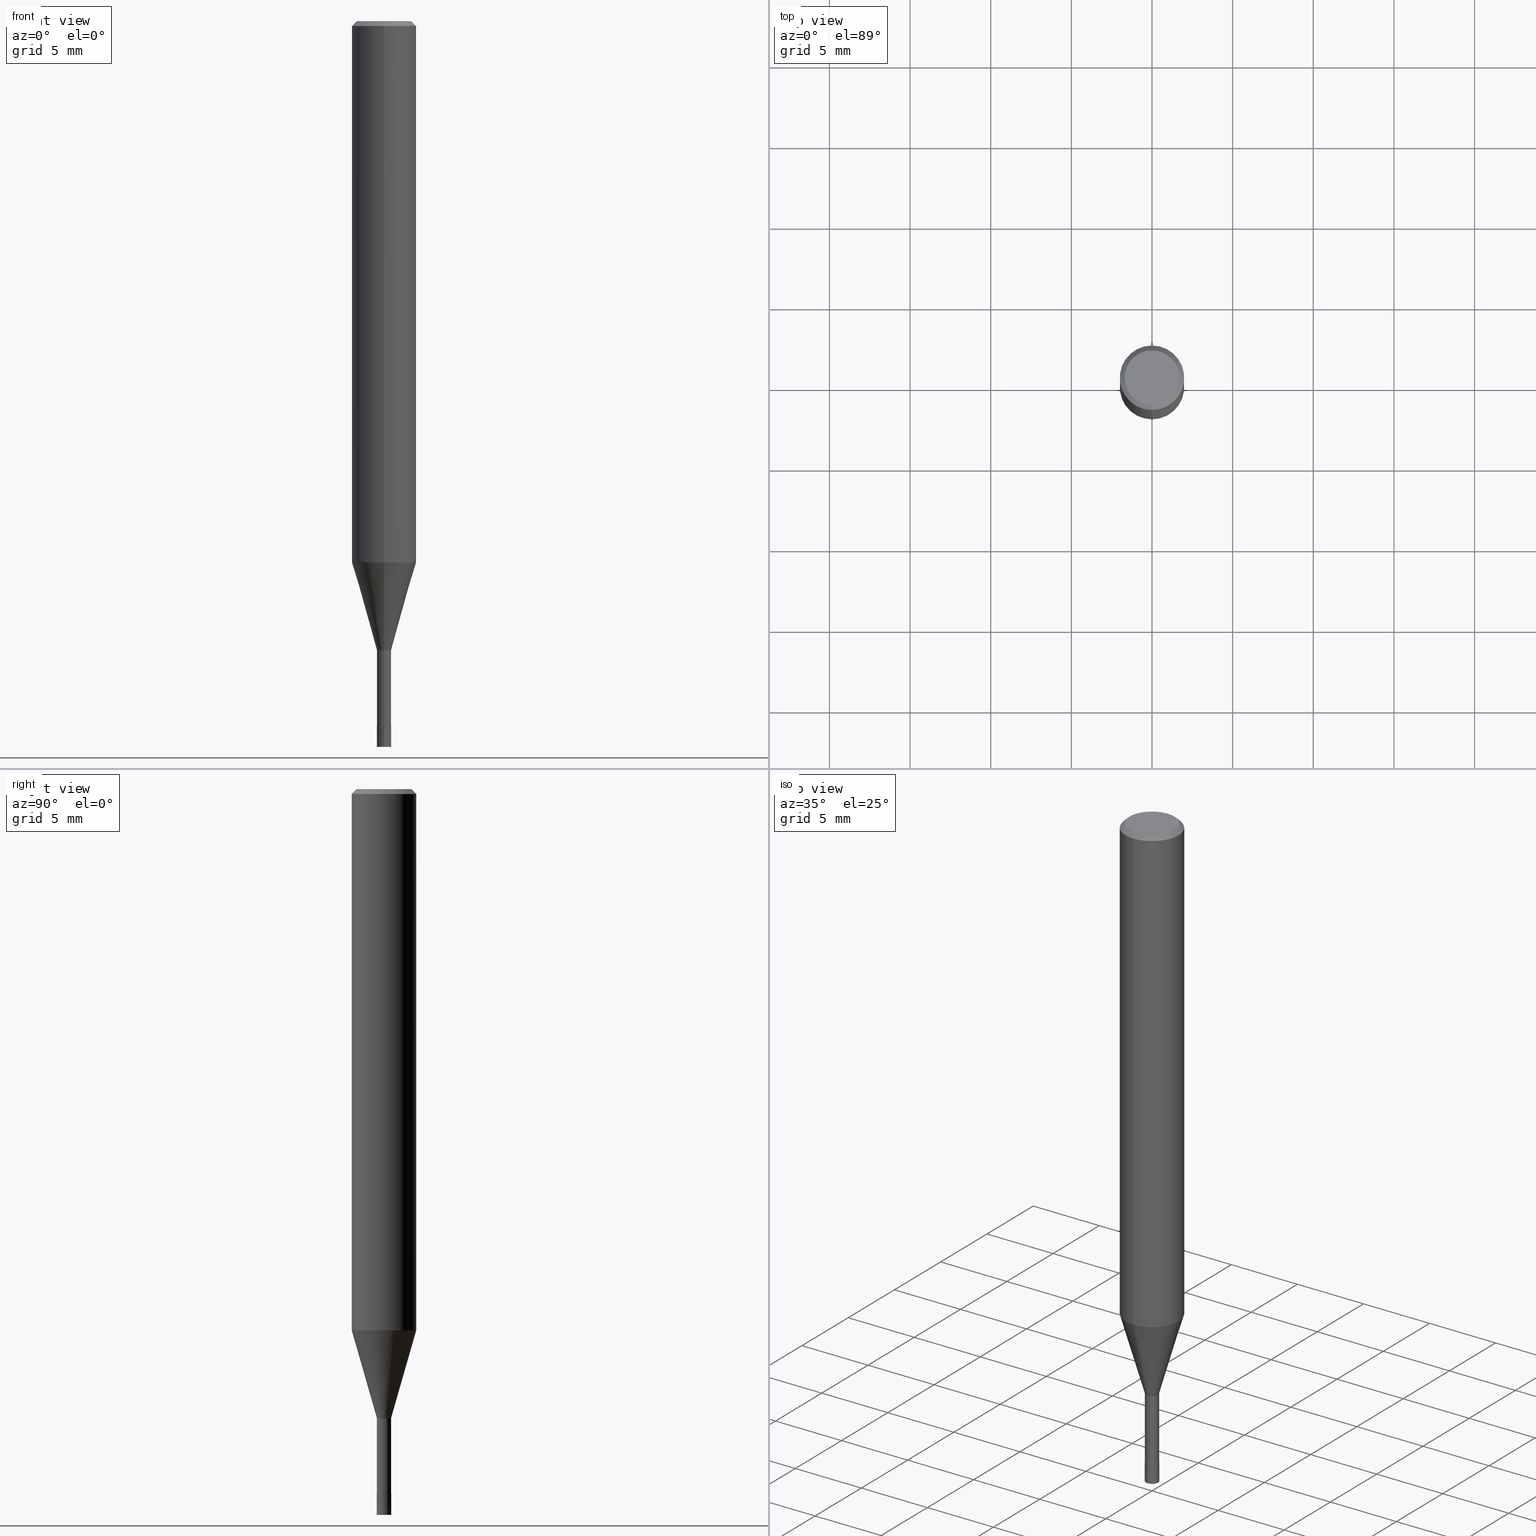
[diagram: canonical four-view strip — front | top / right | iso, engineering-drawing reading convention]
A machine part, canonical four-view strip (front | top / right | iso — engineering-drawing reading convention). The complete STEP part file that produces these views, byte-faithful:
ISO-10303-21;
HEADER;
FILE_DESCRIPTION(('no description'),'unknown implementation level');
FILE_NAME('HLS2009-060-Huellk.stp','  ',('CIMSOURCE GmbH'),('CADClick - KiM GmbH - www.kimweb.de'),'unknown preprocess','ACIS','unknown authorization');
FILE_SCHEMA(('automotive_design'));
ENDSEC;
DATA;
#1=MECHANICAL_DESIGN_GEOMETRIC_PRESENTATION_REPRESENTATION(' ',(#14,#15,#16,#17,#18,#19,#20,#21,#22,#23,#24,#25,#26,#27,#28,#29,#30,#31,#32,#33,#34,#35,#36,#37,#38,#39,#40,#41,#42,#43,#44,#45,#46,#47,#48,#49,#50,#51,#52,#53,#54,#55,#56,#57,#58,#59,#60,#61,#62,#63,#64,#65,#66,#67,#68,#69,#70,#71,#72),#10);
#2=PRODUCT_DEFINITION_CONTEXT('',#73,'design');
#3=APPLICATION_PROTOCOL_DEFINITION('INTERNATIONAL STANDARD','automotive_design',1994,#73);
#4=PRODUCT_CATEGORY_RELATIONSHIP('NONE','NONE',#74,#75);
#5=SHAPE_DEFINITION_REPRESENTATION(#76,#77);
#6=PRODUCT_DEFINITION_CONTEXT('',#78,'design');
#7=APPLICATION_PROTOCOL_DEFINITION('INTERNATIONAL STANDARD','automotive_design',1994,#78);
#8=PRODUCT_CATEGORY_RELATIONSHIP('NONE','NONE',#79,#80);
#9=SHAPE_DEFINITION_REPRESENTATION(#81,#82);
#10= (GEOMETRIC_REPRESENTATION_CONTEXT(3)GLOBAL_UNCERTAINTY_ASSIGNED_CONTEXT((#85))GLOBAL_UNIT_ASSIGNED_CONTEXT((#87,#88,#89))REPRESENTATION_CONTEXT('NONE','WORKSPACE'));
#14=STYLED_ITEM('',(#91),#92);
#15=STYLED_ITEM('',(#93),#94);
#16=STYLED_ITEM('',(#95),#96);
#17=STYLED_ITEM('',(#97),#98);
#18=STYLED_ITEM('',(#99),#100);
#19=STYLED_ITEM('',(#101),#102);
#20=STYLED_ITEM('',(#103),#104);
#21=STYLED_ITEM('',(#105),#106);
#22=STYLED_ITEM('',(#107),#108);
#23=STYLED_ITEM('',(#109),#110);
#24=STYLED_ITEM('',(#111),#112);
#25=STYLED_ITEM('',(#113),#114);
#26=STYLED_ITEM('',(#115),#116);
#27=STYLED_ITEM('',(#117),#118);
#28=STYLED_ITEM('',(#119),#120);
#29=STYLED_ITEM('',(#121),#122);
#30=STYLED_ITEM('',(#123),#124);
#31=STYLED_ITEM('',(#125),#126);
#32=STYLED_ITEM('',(#127),#128);
#33=STYLED_ITEM('',(#129),#130);
#34=STYLED_ITEM('',(#131),#132);
#35=STYLED_ITEM('',(#133),#134);
#36=STYLED_ITEM('',(#135),#136);
#37=STYLED_ITEM('',(#137),#138);
#38=STYLED_ITEM('',(#139),#140);
#39=STYLED_ITEM('',(#141),#142);
#40=STYLED_ITEM('',(#143),#144);
#41=STYLED_ITEM('',(#145),#146);
#42=STYLED_ITEM('',(#147),#148);
#43=STYLED_ITEM('',(#149),#150);
#44=STYLED_ITEM('',(#151),#152);
#45=STYLED_ITEM('',(#153),#154);
#46=STYLED_ITEM('',(#155),#156);
#47=STYLED_ITEM('',(#157),#158);
#48=STYLED_ITEM('',(#159),#160);
#49=STYLED_ITEM('',(#161),#162);
#50=STYLED_ITEM('',(#163),#164);
#51=STYLED_ITEM('',(#165),#166);
#52=STYLED_ITEM('',(#167),#168);
#53=STYLED_ITEM('',(#169),#170);
#54=STYLED_ITEM('',(#171),#172);
#55=STYLED_ITEM('',(#173),#174);
#56=STYLED_ITEM('',(#175),#176);
#57=STYLED_ITEM('',(#177),#178);
#58=STYLED_ITEM('',(#179),#180);
#59=STYLED_ITEM('',(#181),#182);
#60=STYLED_ITEM('',(#183),#184);
#61=STYLED_ITEM('',(#185),#186);
#62=STYLED_ITEM('',(#187),#188);
#63=STYLED_ITEM('',(#189),#190);
#64=STYLED_ITEM('',(#191),#192);
#65=STYLED_ITEM('',(#193),#194);
#66=STYLED_ITEM('',(#195),#196);
#67=STYLED_ITEM('',(#197),#198);
#68=STYLED_ITEM('',(#199),#200);
#69=STYLED_ITEM('',(#201),#202);
#70=STYLED_ITEM('',(#203),#204);
#71=STYLED_ITEM('',(#205),#206);
#72=STYLED_ITEM('',(#207),#208);
#73=APPLICATION_CONTEXT(' ');
#74=PRODUCT_CATEGORY('part','NONE');
#75=PRODUCT_RELATED_PRODUCT_CATEGORY('detail',' ',(#209));
#76=PRODUCT_DEFINITION_SHAPE('NONE','NONE',#210);
#77=ADVANCED_BREP_SHAPE_REPRESENTATION('1',(#162,#211),#10);
#78=APPLICATION_CONTEXT(' ');
#79=PRODUCT_CATEGORY('part','NONE');
#80=PRODUCT_RELATED_PRODUCT_CATEGORY('detail',' ',(#212));
#81=PRODUCT_DEFINITION_SHAPE('NONE','NONE',#213);
#82=ADVANCED_BREP_SHAPE_REPRESENTATION('2',(#200,#214),#10);
#85=UNCERTAINTY_MEASURE_WITH_UNIT(LENGTH_MEASURE(1.0E-006),#87,'','');
#87= (CONVERSION_BASED_UNIT('MILLIMETRE',#217)LENGTH_UNIT()NAMED_UNIT(#220));
#88= (NAMED_UNIT(#222)PLANE_ANGLE_UNIT()SI_UNIT($,.RADIAN.));
#89= (NAMED_UNIT(#222)SOLID_ANGLE_UNIT()SI_UNIT($,.STERADIAN.));
#91=PRESENTATION_STYLE_ASSIGNMENT((#228));
#92=EDGE_CURVE('',#182,#184,#229,.T.);
#93=PRESENTATION_STYLE_ASSIGNMENT((#230));
#94=EDGE_CURVE('',#184,#206,#231,.T.);
#95=PRESENTATION_STYLE_ASSIGNMENT((#232));
#96=EDGE_CURVE('',#204,#164,#233,.T.);
#97=PRESENTATION_STYLE_ASSIGNMENT((#234));
#98=EDGE_CURVE('',#166,#194,#235,.T.);
#99=PRESENTATION_STYLE_ASSIGNMENT((#236));
#100=ADVANCED_FACE('',(#237),#238,.T.);
#101=PRESENTATION_STYLE_ASSIGNMENT((#239));
#102=ADVANCED_FACE('',(#240),#241,.T.);
#103=PRESENTATION_STYLE_ASSIGNMENT((#242));
#104=EDGE_CURVE('',#136,#206,#243,.T.);
#105=PRESENTATION_STYLE_ASSIGNMENT((#244));
#106=ADVANCED_FACE('',(#245),#246,.T.);
#107=PRESENTATION_STYLE_ASSIGNMENT((#247));
#108=EDGE_CURVE('',#194,#166,#248,.T.);
#109=PRESENTATION_STYLE_ASSIGNMENT((#249));
#110=ADVANCED_FACE('',(#250),#251,.T.);
#111=PRESENTATION_STYLE_ASSIGNMENT((#252));
#112=ADVANCED_FACE('',(#253),#254,.T.);
#113=PRESENTATION_STYLE_ASSIGNMENT((#255));
#114=ADVANCED_FACE('',(#256),#257,.T.);
#115=PRESENTATION_STYLE_ASSIGNMENT((#258));
#116=ADVANCED_FACE('',(#259),#260,.T.);
#117=PRESENTATION_STYLE_ASSIGNMENT((#261));
#118=ADVANCED_FACE('',(#262),#263,.T.);
#119=PRESENTATION_STYLE_ASSIGNMENT((#264));
#120=EDGE_CURVE('',#138,#146,#265,.T.);
#121=PRESENTATION_STYLE_ASSIGNMENT((#266));
#122=EDGE_CURVE('',#126,#154,#267,.T.);
#123=PRESENTATION_STYLE_ASSIGNMENT((#268));
#124=EDGE_CURVE('',#204,#126,#269,.T.);
#125=PRESENTATION_STYLE_ASSIGNMENT((#270));
#126=VERTEX_POINT('',#271);
#127=PRESENTATION_STYLE_ASSIGNMENT((#272));
#128=ADVANCED_FACE('',(#273),#274,.T.);
#129=PRESENTATION_STYLE_ASSIGNMENT((#275));
#130=EDGE_CURVE('',#154,#164,#276,.T.);
#131=PRESENTATION_STYLE_ASSIGNMENT((#277));
#132=ADVANCED_FACE('',(#278),#279,.T.);
#133=PRESENTATION_STYLE_ASSIGNMENT((#280));
#134=EDGE_CURVE('',#182,#194,#281,.T.);
#135=PRESENTATION_STYLE_ASSIGNMENT((#282));
#136=VERTEX_POINT('',#283);
#137=PRESENTATION_STYLE_ASSIGNMENT((#284));
#138=VERTEX_POINT('',#285);
#139=PRESENTATION_STYLE_ASSIGNMENT((#286));
#140=EDGE_CURVE('',#180,#192,#287,.T.);
#141=PRESENTATION_STYLE_ASSIGNMENT((#288));
#142=EDGE_CURVE('',#184,#182,#289,.T.);
#143=PRESENTATION_STYLE_ASSIGNMENT((#290));
#144=EDGE_CURVE('',#164,#204,#291,.T.);
#145=PRESENTATION_STYLE_ASSIGNMENT((#292));
#146=VERTEX_POINT('',#293);
#147=PRESENTATION_STYLE_ASSIGNMENT((#294));
#148=EDGE_CURVE('',#138,#180,#295,.T.);
#149=PRESENTATION_STYLE_ASSIGNMENT((#296));
#150=VERTEX_POINT('',#297);
#151=PRESENTATION_STYLE_ASSIGNMENT((#298));
#152=EDGE_CURVE('',#146,#138,#299,.T.);
#153=PRESENTATION_STYLE_ASSIGNMENT((#300));
#154=VERTEX_POINT('',#301);
#155=PRESENTATION_STYLE_ASSIGNMENT((#302));
#156=EDGE_CURVE('',#126,#150,#303,.T.);
#157=PRESENTATION_STYLE_ASSIGNMENT((#304));
#158=ADVANCED_FACE('',(#305),#306,.T.);
#159=PRESENTATION_STYLE_ASSIGNMENT((#307));
#160=EDGE_CURVE('',#154,#126,#308,.T.);
#161=PRESENTATION_STYLE_ASSIGNMENT((#309));
#162=MANIFOLD_SOLID_BREP('1',#310);
#163=PRESENTATION_STYLE_ASSIGNMENT((#311));
#164=VERTEX_POINT('',#312);
#165=PRESENTATION_STYLE_ASSIGNMENT((#313));
#166=VERTEX_POINT('',#314);
#167=PRESENTATION_STYLE_ASSIGNMENT((#315));
#168=ADVANCED_FACE('',(#316,#317),#318,.T.);
#169=PRESENTATION_STYLE_ASSIGNMENT((#319));
#170=ADVANCED_FACE('',(#320),#321,.T.);
#171=PRESENTATION_STYLE_ASSIGNMENT((#322));
#172=EDGE_CURVE('',#186,#150,#323,.T.);
#173=PRESENTATION_STYLE_ASSIGNMENT((#324));
#174=ADVANCED_FACE('',(#325),#326,.T.);
#175=PRESENTATION_STYLE_ASSIGNMENT((#327));
#176=ADVANCED_FACE('',(#328),#329,.T.);
#177=PRESENTATION_STYLE_ASSIGNMENT((#330));
#178=EDGE_CURVE('',#192,#180,#331,.T.);
#179=PRESENTATION_STYLE_ASSIGNMENT((#332));
#180=VERTEX_POINT('',#333);
#181=PRESENTATION_STYLE_ASSIGNMENT((#334));
#182=VERTEX_POINT('',#335);
#183=PRESENTATION_STYLE_ASSIGNMENT((#336));
#184=VERTEX_POINT('',#337);
#185=PRESENTATION_STYLE_ASSIGNMENT((#338));
#186=VERTEX_POINT('',#339);
#187=PRESENTATION_STYLE_ASSIGNMENT((#340));
#188=EDGE_CURVE('',#166,#184,#341,.T.);
#189=PRESENTATION_STYLE_ASSIGNMENT((#342));
#190=EDGE_CURVE('',#186,#154,#343,.T.);
#191=PRESENTATION_STYLE_ASSIGNMENT((#344));
#192=VERTEX_POINT('',#345);
#193=PRESENTATION_STYLE_ASSIGNMENT((#346));
#194=VERTEX_POINT('',#347);
#195=PRESENTATION_STYLE_ASSIGNMENT((#348));
#196=EDGE_CURVE('',#150,#186,#349,.T.);
#197=PRESENTATION_STYLE_ASSIGNMENT((#350));
#198=EDGE_CURVE('',#206,#136,#351,.T.);
#199=PRESENTATION_STYLE_ASSIGNMENT((#352));
#200=MANIFOLD_SOLID_BREP('2',#353);
#201=PRESENTATION_STYLE_ASSIGNMENT((#354));
#202=EDGE_CURVE('',#136,#182,#355,.T.);
#203=PRESENTATION_STYLE_ASSIGNMENT((#356));
#204=VERTEX_POINT('',#357);
#205=PRESENTATION_STYLE_ASSIGNMENT((#358));
#206=VERTEX_POINT('',#359);
#207=PRESENTATION_STYLE_ASSIGNMENT((#360));
#208=EDGE_CURVE('',#192,#146,#361,.T.);
#209=PRODUCT('1','1','PART-1-DESC',(#362));
#210=PRODUCT_DEFINITION('NONE','NONE',#363,#2);
#211=AXIS2_PLACEMENT_3D('',#364,#365,#366);
#212=PRODUCT('2','2','PART-2-DESC',(#367));
#213=PRODUCT_DEFINITION('NONE','NONE',#368,#6);
#214=AXIS2_PLACEMENT_3D('',#369,#370,#371);
#217=LENGTH_MEASURE_WITH_UNIT(LENGTH_MEASURE(1.0),#372);
#220=DIMENSIONAL_EXPONENTS(1.0,0.0,0.0,0.0,0.0,0.0,0.0);
#222=DIMENSIONAL_EXPONENTS(0.0,0.0,0.0,0.0,0.0,0.0,0.0);
#228=CURVE_STYLE('',#373,POSITIVE_LENGTH_MEASURE(1.0E-006),#374);
#229=CIRCLE('',#375,2.0);
#230=CURVE_STYLE('',#376,POSITIVE_LENGTH_MEASURE(1.0E-006),#377);
#231=LINE('',#378,#379);
#232=CURVE_STYLE('',#380,POSITIVE_LENGTH_MEASURE(1.0E-006),#381);
#233=CIRCLE('',#382,1.99995);
#234=CURVE_STYLE('',#383,POSITIVE_LENGTH_MEASURE(1.0E-006),#384);
#235=CIRCLE('',#385,1.7);
#236=SURFACE_STYLE_USAGE(.BOTH.,#386);
#237=FACE_OUTER_BOUND('',#387,.T.);
#238=CYLINDRICAL_SURFACE('',#388,2.0);
#239=SURFACE_STYLE_USAGE(.BOTH.,#389);
#240=FACE_OUTER_BOUND('',#390,.T.);
#241=CYLINDRICAL_SURFACE('',#391,0.43995);
#242=CURVE_STYLE('',#392,POSITIVE_LENGTH_MEASURE(1.0E-006),#393);
#243=CIRCLE('',#394,2.0);
#244=SURFACE_STYLE_USAGE(.BOTH.,#395);
#245=FACE_OUTER_BOUND('',#396,.T.);
#246=CONICAL_SURFACE('',#397,1.85,0.785398163397453);
#247=CURVE_STYLE('',#398,POSITIVE_LENGTH_MEASURE(1.0E-006),#399);
#248=CIRCLE('',#400,1.7);
#249=SURFACE_STYLE_USAGE(.BOTH.,#401);
#250=FACE_OUTER_BOUND('',#402,.T.);
#251=CONICAL_SURFACE('',#403,0.44995,7.69230767713464E-005);
#252=SURFACE_STYLE_USAGE(.BOTH.,#404);
#253=FACE_OUTER_BOUND('',#405,.T.);
#254=PLANE('',#406);
#255=SURFACE_STYLE_USAGE(.BOTH.,#407);
#256=FACE_OUTER_BOUND('',#408,.T.);
#257=CONICAL_SURFACE('',#409,1.21995,0.279270532486472);
#258=SURFACE_STYLE_USAGE(.BOTH.,#410);
#259=FACE_OUTER_BOUND('',#411,.T.);
#260=PLANE('',#412);
#261=SURFACE_STYLE_USAGE(.BOTH.,#413);
#262=FACE_OUTER_BOUND('',#414,.T.);
#263=CONICAL_SURFACE('',#415,1.85,0.785398163397453);
#264=CURVE_STYLE('',#416,POSITIVE_LENGTH_MEASURE(1.0E-006),#417);
#265=CIRCLE('',#418,0.45);
#266=CURVE_STYLE('',#419,POSITIVE_LENGTH_MEASURE(1.0E-006),#420);
#267=CIRCLE('',#421,0.43995);
#268=CURVE_STYLE('',#422,POSITIVE_LENGTH_MEASURE(1.0E-006),#423);
#269=LINE('',#424,#425);
#270=POINT_STYLE(' ',#426,POSITIVE_LENGTH_MEASURE(1.0E-006),#427);
#271=CARTESIAN_POINT('',(0.0,0.43995,-39.0));
#272=SURFACE_STYLE_USAGE(.BOTH.,#428);
#273=FACE_OUTER_BOUND('',#429,.T.);
#274=CYLINDRICAL_SURFACE('',#430,0.43995);
#275=CURVE_STYLE('',#431,POSITIVE_LENGTH_MEASURE(1.0E-006),#432);
#276=LINE('',#433,#434);
#277=SURFACE_STYLE_USAGE(.BOTH.,#435);
#278=FACE_OUTER_BOUND('',#436,.T.);
#279=CONICAL_SURFACE('',#437,1.21995,0.279270532486472);
#280=CURVE_STYLE('',#438,POSITIVE_LENGTH_MEASURE(1.0E-006),#439);
#281=LINE('',#440,#441);
#282=POINT_STYLE(' ',#442,POSITIVE_LENGTH_MEASURE(1.0E-006),#443);
#283=CARTESIAN_POINT('',(2.44921270764475E-016,-2.0,-33.56));
#284=POINT_STYLE(' ',#444,POSITIVE_LENGTH_MEASURE(1.0E-006),#445);
#285=CARTESIAN_POINT('',(5.5107285922007E-017,-0.45,-45.0));
#286=CURVE_STYLE('',#446,POSITIVE_LENGTH_MEASURE(1.0E-006),#447);
#287=CIRCLE('',#448,0.4499);
#288=CURVE_STYLE('',#449,POSITIVE_LENGTH_MEASURE(1.0E-006),#450);
#289=CIRCLE('',#451,2.0);
#290=CURVE_STYLE('',#452,POSITIVE_LENGTH_MEASURE(1.0E-006),#453);
#291=CIRCLE('',#454,1.99995);
#292=POINT_STYLE(' ',#455,POSITIVE_LENGTH_MEASURE(1.0E-006),#456);
#293=CARTESIAN_POINT('',(0.0,0.45,-45.0));
#294=CURVE_STYLE('',#457,POSITIVE_LENGTH_MEASURE(1.0E-006),#458);
#295=LINE('',#459,#460);
#296=POINT_STYLE(' ',#461,POSITIVE_LENGTH_MEASURE(1.0E-006),#462);
#297=CARTESIAN_POINT('',(0.0,0.43995,-43.7));
#298=CURVE_STYLE('',#463,POSITIVE_LENGTH_MEASURE(1.0E-006),#464);
#299=CIRCLE('',#465,0.45);
#300=POINT_STYLE(' ',#466,POSITIVE_LENGTH_MEASURE(1.0E-006),#467);
#301=CARTESIAN_POINT('',(5.38765565364155E-017,-0.43995,-39.0));
#302=CURVE_STYLE('',#468,POSITIVE_LENGTH_MEASURE(1.0E-006),#469);
#303=LINE('',#470,#471);
#304=SURFACE_STYLE_USAGE(.BOTH.,#472);
#305=FACE_OUTER_BOUND('',#473,.T.);
#306=PLANE('',#474);
#307=CURVE_STYLE('',#475,POSITIVE_LENGTH_MEASURE(1.0E-006),#476);
#308=CIRCLE('',#477,0.43995);
#309=SURFACE_STYLE_USAGE(.BOTH.,#478);
#310=CLOSED_SHELL('',(#128,#114,#100,#118,#168,#116,#106,#170,#132,#102,#176));
#311=POINT_STYLE(' ',#479,POSITIVE_LENGTH_MEASURE(1.0E-006),#480);
#312=CARTESIAN_POINT('',(2.44915147732706E-016,-1.99995,-33.56));
#313=POINT_STYLE(' ',#481,POSITIVE_LENGTH_MEASURE(1.0E-006),#482);
#314=CARTESIAN_POINT('',(0.0,1.7,0.0));
#315=SURFACE_STYLE_USAGE(.BOTH.,#483);
#316=FACE_OUTER_BOUND('',#484,.T.);
#317=FACE_BOUND('',#485,.T.);
#318=PLANE('',#486);
#319=SURFACE_STYLE_USAGE(.BOTH.,#487);
#320=FACE_OUTER_BOUND('',#488,.T.);
#321=CYLINDRICAL_SURFACE('',#489,2.0);
#322=CURVE_STYLE('',#490,POSITIVE_LENGTH_MEASURE(1.0E-006),#491);
#323=CIRCLE('',#492,0.43995);
#324=SURFACE_STYLE_USAGE(.BOTH.,#493);
#325=FACE_OUTER_BOUND('',#494,.T.);
#326=CONICAL_SURFACE('',#495,0.44995,7.69230767713464E-005);
#327=SURFACE_STYLE_USAGE(.BOTH.,#496);
#328=FACE_OUTER_BOUND('',#497,.T.);
#329=PLANE('',#498);
#330=CURVE_STYLE('',#499,POSITIVE_LENGTH_MEASURE(1.0E-006),#500);
#331=CIRCLE('',#501,0.4499);
#332=POINT_STYLE(' ',#502,POSITIVE_LENGTH_MEASURE(1.0E-006),#503);
#333=CARTESIAN_POINT('',(5.50950398584687E-017,-0.4499,-43.7));
#334=POINT_STYLE(' ',#504,POSITIVE_LENGTH_MEASURE(1.0E-006),#505);
#335=CARTESIAN_POINT('',(2.44921270764475E-016,-2.0,-0.299999999999997));
#336=POINT_STYLE(' ',#506,POSITIVE_LENGTH_MEASURE(1.0E-006),#507);
#337=CARTESIAN_POINT('',(0.0,2.0,-0.299999999999997));
#338=POINT_STYLE(' ',#508,POSITIVE_LENGTH_MEASURE(1.0E-006),#509);
#339=CARTESIAN_POINT('',(5.38765565364155E-017,-0.43995,-43.7));
#340=CURVE_STYLE('',#510,POSITIVE_LENGTH_MEASURE(1.0E-006),#511);
#341=LINE('',#512,#513);
#342=CURVE_STYLE('',#514,POSITIVE_LENGTH_MEASURE(1.0E-006),#515);
#343=LINE('',#516,#517);
#344=POINT_STYLE(' ',#518,POSITIVE_LENGTH_MEASURE(1.0E-006),#519);
#345=CARTESIAN_POINT('',(0.0,0.4499,-43.7));
#346=POINT_STYLE(' ',#520,POSITIVE_LENGTH_MEASURE(1.0E-006),#521);
#347=CARTESIAN_POINT('',(2.08183080149804E-016,-1.7,0.0));
#348=CURVE_STYLE('',#522,POSITIVE_LENGTH_MEASURE(1.0E-006),#523);
#349=CIRCLE('',#524,0.43995);
#350=CURVE_STYLE('',#525,POSITIVE_LENGTH_MEASURE(1.0E-006),#526);
#351=CIRCLE('',#527,2.0);
#352=SURFACE_STYLE_USAGE(.BOTH.,#528);
#353=CLOSED_SHELL('',(#174,#112,#110,#158));
#354=CURVE_STYLE('',#529,POSITIVE_LENGTH_MEASURE(1.0E-006),#530);
#355=LINE('',#531,#532);
#356=POINT_STYLE(' ',#533,POSITIVE_LENGTH_MEASURE(1.0E-006),#534);
#357=CARTESIAN_POINT('',(0.0,1.99995,-33.56));
#358=POINT_STYLE(' ',#535,POSITIVE_LENGTH_MEASURE(1.0E-006),#536);
#359=CARTESIAN_POINT('',(0.0,2.0,-33.56));
#360=CURVE_STYLE('',#537,POSITIVE_LENGTH_MEASURE(1.0E-006),#538);
#361=LINE('',#539,#540);
#362=PRODUCT_CONTEXT('',#73,'mechanical');
#363=PRODUCT_DEFINITION_FORMATION_WITH_SPECIFIED_SOURCE(' ','NONE',#209,.NOT_KNOWN.);
#364=CARTESIAN_POINT('',(0.0,0.0,0.0));
#365=DIRECTION('',(0.0,0.0,1.0));
#366=DIRECTION('',(1.0,0.0,0.0));
#367=PRODUCT_CONTEXT('',#78,'mechanical');
#368=PRODUCT_DEFINITION_FORMATION_WITH_SPECIFIED_SOURCE(' ','NONE',#212,.NOT_KNOWN.);
#369=CARTESIAN_POINT('',(0.0,0.0,0.0));
#370=DIRECTION('',(0.0,0.0,1.0));
#371=DIRECTION('',(1.0,0.0,0.0));
#372= (NAMED_UNIT(#220)LENGTH_UNIT()SI_UNIT(.MILLI.,.METRE.));
#373=DRAUGHTING_PRE_DEFINED_CURVE_FONT('continuous');
#374=COLOUR_RGB('',0.498039215803146,0.498039215803146,0.498039215803146);
#375=AXIS2_PLACEMENT_3D('',#542,#543,#544);
#376=DRAUGHTING_PRE_DEFINED_CURVE_FONT('continuous');
#377=COLOUR_RGB('',0.498039215803146,0.498039215803146,0.498039215803146);
#378=CARTESIAN_POINT('',(-2.44921270764475E-016,2.0,-16.93));
#379=VECTOR('',#545,1.0);
#380=DRAUGHTING_PRE_DEFINED_CURVE_FONT('continuous');
#381=COLOUR_RGB('',0.498039215803146,0.498039215803146,0.498039215803146);
#382=AXIS2_PLACEMENT_3D('',#546,#547,#548);
#383=DRAUGHTING_PRE_DEFINED_CURVE_FONT('continuous');
#384=COLOUR_RGB('',0.498039215803146,0.498039215803146,0.498039215803146);
#385=AXIS2_PLACEMENT_3D('',#549,#550,#551);
#386=SURFACE_SIDE_STYLE('',(#552));
#387=EDGE_LOOP('',(#553,#554,#555,#556));
#388=AXIS2_PLACEMENT_3D('',#557,#558,#559);
#389=SURFACE_SIDE_STYLE('',(#560));
#390=EDGE_LOOP('',(#561,#562,#563,#564));
#391=AXIS2_PLACEMENT_3D('',#565,#566,#567);
#392=DRAUGHTING_PRE_DEFINED_CURVE_FONT('continuous');
#393=COLOUR_RGB('',0.498039215803146,0.498039215803146,0.498039215803146);
#394=AXIS2_PLACEMENT_3D('',#568,#569,#570);
#395=SURFACE_SIDE_STYLE('',(#571));
#396=EDGE_LOOP('',(#572,#573,#574,#575));
#397=AXIS2_PLACEMENT_3D('',#576,#577,#578);
#398=DRAUGHTING_PRE_DEFINED_CURVE_FONT('continuous');
#399=COLOUR_RGB('',0.498039215803146,0.498039215803146,0.498039215803146);
#400=AXIS2_PLACEMENT_3D('',#579,#580,#581);
#401=SURFACE_SIDE_STYLE('',(#582));
#402=EDGE_LOOP('',(#583,#584,#585,#586));
#403=AXIS2_PLACEMENT_3D('',#587,#588,#589);
#404=SURFACE_SIDE_STYLE('',(#590));
#405=EDGE_LOOP('',(#591,#592));
#406=AXIS2_PLACEMENT_3D('',#593,#594,#595);
#407=SURFACE_SIDE_STYLE('',(#596));
#408=EDGE_LOOP('',(#597,#598,#599,#600));
#409=AXIS2_PLACEMENT_3D('',#601,#602,#603);
#410=SURFACE_SIDE_STYLE('',(#604));
#411=EDGE_LOOP('',(#605,#606));
#412=AXIS2_PLACEMENT_3D('',#607,#608,#609);
#413=SURFACE_SIDE_STYLE('',(#610));
#414=EDGE_LOOP('',(#611,#612,#613,#614));
#415=AXIS2_PLACEMENT_3D('',#615,#616,#617);
#416=DRAUGHTING_PRE_DEFINED_CURVE_FONT('continuous');
#417=COLOUR_RGB('',0.800000011920929,0.800000011920929,0.800000011920929);
#418=AXIS2_PLACEMENT_3D('',#618,#619,#620);
#419=DRAUGHTING_PRE_DEFINED_CURVE_FONT('continuous');
#420=COLOUR_RGB('',0.498039215803146,0.498039215803146,0.498039215803146);
#421=AXIS2_PLACEMENT_3D('',#621,#622,#623);
#422=DRAUGHTING_PRE_DEFINED_CURVE_FONT('continuous');
#423=COLOUR_RGB('',0.498039215803146,0.498039215803146,0.498039215803146);
#424=CARTESIAN_POINT('',(-1.49395852134561E-016,1.21995,-36.28));
#425=VECTOR('',#624,1.0);
#426=PRE_DEFINED_MARKER('');
#427=COLOUR_RGB('',0.498039215803146,0.498039215803146,0.498039215803146);
#428=SURFACE_SIDE_STYLE('',(#625));
#429=EDGE_LOOP('',(#626,#627,#628,#629));
#430=AXIS2_PLACEMENT_3D('',#630,#631,#632);
#431=DRAUGHTING_PRE_DEFINED_CURVE_FONT('continuous');
#432=COLOUR_RGB('',0.498039215803146,0.498039215803146,0.498039215803146);
#433=CARTESIAN_POINT('',(1.49395852134561E-016,-1.21995,-36.28));
#434=VECTOR('',#633,1.0);
#435=SURFACE_SIDE_STYLE('',(#634));
#436=EDGE_LOOP('',(#635,#636,#637,#638));
#437=AXIS2_PLACEMENT_3D('',#639,#640,#641);
#438=DRAUGHTING_PRE_DEFINED_CURVE_FONT('continuous');
#439=COLOUR_RGB('',0.498039215803146,0.498039215803146,0.498039215803146);
#440=CARTESIAN_POINT('',(2.2655217545714E-016,-1.85,-0.149999999999999));
#441=VECTOR('',#642,1.0);
#442=PRE_DEFINED_MARKER('');
#443=COLOUR_RGB('',0.498039215803146,0.498039215803146,0.498039215803146);
#444=PRE_DEFINED_MARKER('');
#445=COLOUR_RGB('',0.800000011920929,0.800000011920929,0.800000011920929);
#446=DRAUGHTING_PRE_DEFINED_CURVE_FONT('continuous');
#447=COLOUR_RGB('',0.800000011920929,0.800000011920929,0.800000011920929);
#448=AXIS2_PLACEMENT_3D('',#643,#644,#645);
#449=DRAUGHTING_PRE_DEFINED_CURVE_FONT('continuous');
#450=COLOUR_RGB('',0.498039215803146,0.498039215803146,0.498039215803146);
#451=AXIS2_PLACEMENT_3D('',#646,#647,#648);
#452=DRAUGHTING_PRE_DEFINED_CURVE_FONT('continuous');
#453=COLOUR_RGB('',0.498039215803146,0.498039215803146,0.498039215803146);
#454=AXIS2_PLACEMENT_3D('',#649,#650,#651);
#455=PRE_DEFINED_MARKER('');
#456=COLOUR_RGB('',0.800000011920929,0.800000011920929,0.800000011920929);
#457=DRAUGHTING_PRE_DEFINED_CURVE_FONT('continuous');
#458=COLOUR_RGB('',0.800000011920929,0.800000011920929,0.800000011920929);
#459=CARTESIAN_POINT('',(5.51011628902379E-017,-0.44995,-44.35));
#460=VECTOR('',#652,1.0);
#461=PRE_DEFINED_MARKER('');
#462=COLOUR_RGB('',0.498039215803146,0.498039215803146,0.498039215803146);
#463=DRAUGHTING_PRE_DEFINED_CURVE_FONT('continuous');
#464=COLOUR_RGB('',0.800000011920929,0.800000011920929,0.800000011920929);
#465=AXIS2_PLACEMENT_3D('',#653,#654,#655);
#466=PRE_DEFINED_MARKER('');
#467=COLOUR_RGB('',0.498039215803146,0.498039215803146,0.498039215803146);
#468=DRAUGHTING_PRE_DEFINED_CURVE_FONT('continuous');
#469=COLOUR_RGB('',0.498039215803146,0.498039215803146,0.498039215803146);
#470=CARTESIAN_POINT('',(-5.38765565364155E-017,0.43995,-41.35));
#471=VECTOR('',#656,1.0);
#472=SURFACE_SIDE_STYLE('',(#657));
#473=EDGE_LOOP('',(#658,#659));
#474=AXIS2_PLACEMENT_3D('',#660,#661,#662);
#475=DRAUGHTING_PRE_DEFINED_CURVE_FONT('continuous');
#476=COLOUR_RGB('',0.498039215803146,0.498039215803146,0.498039215803146);
#477=AXIS2_PLACEMENT_3D('',#663,#664,#665);
#478=SURFACE_SIDE_STYLE('',(#666));
#479=PRE_DEFINED_MARKER('');
#480=COLOUR_RGB('',0.498039215803146,0.498039215803146,0.498039215803146);
#481=PRE_DEFINED_MARKER('');
#482=COLOUR_RGB('',0.498039215803146,0.498039215803146,0.498039215803146);
#483=SURFACE_SIDE_STYLE('',(#667));
#484=EDGE_LOOP('',(#668,#669));
#485=EDGE_LOOP('',(#670,#671));
#486=AXIS2_PLACEMENT_3D('',#672,#673,#674);
#487=SURFACE_SIDE_STYLE('',(#675));
#488=EDGE_LOOP('',(#676,#677,#678,#679));
#489=AXIS2_PLACEMENT_3D('',#680,#681,#682);
#490=DRAUGHTING_PRE_DEFINED_CURVE_FONT('continuous');
#491=COLOUR_RGB('',0.498039215803146,0.498039215803146,0.498039215803146);
#492=AXIS2_PLACEMENT_3D('',#683,#684,#685);
#493=SURFACE_SIDE_STYLE('',(#686));
#494=EDGE_LOOP('',(#687,#688,#689,#690));
#495=AXIS2_PLACEMENT_3D('',#691,#692,#693);
#496=SURFACE_SIDE_STYLE('',(#694));
#497=EDGE_LOOP('',(#695,#696));
#498=AXIS2_PLACEMENT_3D('',#697,#698,#699);
#499=DRAUGHTING_PRE_DEFINED_CURVE_FONT('continuous');
#500=COLOUR_RGB('',0.800000011920929,0.800000011920929,0.800000011920929);
#501=AXIS2_PLACEMENT_3D('',#700,#701,#702);
#502=PRE_DEFINED_MARKER('');
#503=COLOUR_RGB('',0.800000011920929,0.800000011920929,0.800000011920929);
#504=PRE_DEFINED_MARKER('');
#505=COLOUR_RGB('',0.498039215803146,0.498039215803146,0.498039215803146);
#506=PRE_DEFINED_MARKER('');
#507=COLOUR_RGB('',0.498039215803146,0.498039215803146,0.498039215803146);
#508=PRE_DEFINED_MARKER('');
#509=COLOUR_RGB('',0.498039215803146,0.498039215803146,0.498039215803146);
#510=DRAUGHTING_PRE_DEFINED_CURVE_FONT('continuous');
#511=COLOUR_RGB('',0.498039215803146,0.498039215803146,0.498039215803146);
#512=CARTESIAN_POINT('',(-2.2655217545714E-016,1.85,-0.149999999999999));
#513=VECTOR('',#703,1.0);
#514=DRAUGHTING_PRE_DEFINED_CURVE_FONT('continuous');
#515=COLOUR_RGB('',0.498039215803146,0.498039215803146,0.498039215803146);
#516=CARTESIAN_POINT('',(5.38765565364155E-017,-0.43995,-41.35));
#517=VECTOR('',#704,1.0);
#518=PRE_DEFINED_MARKER('');
#519=COLOUR_RGB('',0.800000011920929,0.800000011920929,0.800000011920929);
#520=PRE_DEFINED_MARKER('');
#521=COLOUR_RGB('',0.498039215803146,0.498039215803146,0.498039215803146);
#522=DRAUGHTING_PRE_DEFINED_CURVE_FONT('continuous');
#523=COLOUR_RGB('',0.498039215803146,0.498039215803146,0.498039215803146);
#524=AXIS2_PLACEMENT_3D('',#705,#706,#707);
#525=DRAUGHTING_PRE_DEFINED_CURVE_FONT('continuous');
#526=COLOUR_RGB('',0.498039215803146,0.498039215803146,0.498039215803146);
#527=AXIS2_PLACEMENT_3D('',#708,#709,#710);
#528=SURFACE_SIDE_STYLE('',(#711));
#529=DRAUGHTING_PRE_DEFINED_CURVE_FONT('continuous');
#530=COLOUR_RGB('',0.498039215803146,0.498039215803146,0.498039215803146);
#531=CARTESIAN_POINT('',(2.44921270764475E-016,-2.0,-16.93));
#532=VECTOR('',#712,1.0);
#533=PRE_DEFINED_MARKER('');
#534=COLOUR_RGB('',0.498039215803146,0.498039215803146,0.498039215803146);
#535=PRE_DEFINED_MARKER('');
#536=COLOUR_RGB('',0.498039215803146,0.498039215803146,0.498039215803146);
#537=DRAUGHTING_PRE_DEFINED_CURVE_FONT('continuous');
#538=COLOUR_RGB('',0.800000011920929,0.800000011920929,0.800000011920929);
#539=CARTESIAN_POINT('',(-5.51011628902379E-017,0.44995,-44.35));
#540=VECTOR('',#713,1.0);
#542=CARTESIAN_POINT('',(0.0,0.0,-0.299999999999997));
#543=DIRECTION('',(0.0,0.0,-1.0));
#544=DIRECTION('',(0.0,1.0,0.0));
#545=DIRECTION('',(0.0,0.0,-1.0));
#546=CARTESIAN_POINT('',(0.0,0.0,-33.56));
#547=DIRECTION('',(0.0,0.0,-1.0));
#548=DIRECTION('',(0.0,1.0,0.0));
#549=CARTESIAN_POINT('',(0.0,0.0,0.0));
#550=DIRECTION('',(0.0,0.0,-1.0));
#551=DIRECTION('',(0.0,1.0,0.0));
#552=SURFACE_STYLE_FILL_AREA(#714);
#553=ORIENTED_EDGE('',*,*,#94,.F.);
#554=ORIENTED_EDGE('',*,*,#142,.T.);
#555=ORIENTED_EDGE('',*,*,#202,.F.);
#556=ORIENTED_EDGE('',*,*,#198,.F.);
#557=CARTESIAN_POINT('',(0.0,0.0,-16.93));
#558=DIRECTION('',(-0.0,-0.0,1.0));
#559=DIRECTION('',(0.0,1.0,0.0));
#560=SURFACE_STYLE_FILL_AREA(#715);
#561=ORIENTED_EDGE('',*,*,#156,.T.);
#562=ORIENTED_EDGE('',*,*,#172,.F.);
#563=ORIENTED_EDGE('',*,*,#190,.T.);
#564=ORIENTED_EDGE('',*,*,#160,.T.);
#565=CARTESIAN_POINT('',(0.0,0.0,-41.35));
#566=DIRECTION('',(-0.0,-0.0,1.0));
#567=DIRECTION('',(0.0,1.0,0.0));
#568=CARTESIAN_POINT('',(0.0,0.0,-33.56));
#569=DIRECTION('',(0.0,0.0,-1.0));
#570=DIRECTION('',(0.0,1.0,0.0));
#571=SURFACE_STYLE_FILL_AREA(#716);
#572=ORIENTED_EDGE('',*,*,#188,.T.);
#573=ORIENTED_EDGE('',*,*,#92,.F.);
#574=ORIENTED_EDGE('',*,*,#134,.T.);
#575=ORIENTED_EDGE('',*,*,#108,.T.);
#576=CARTESIAN_POINT('',(0.0,0.0,-0.149999999999999));
#577=DIRECTION('',(0.0,-0.0,-1.0));
#578=DIRECTION('',(0.0,1.0,0.0));
#579=CARTESIAN_POINT('',(0.0,0.0,0.0));
#580=DIRECTION('',(0.0,0.0,-1.0));
#581=DIRECTION('',(0.0,1.0,0.0));
#582=SURFACE_STYLE_FILL_AREA(#717);
#583=ORIENTED_EDGE('',*,*,#208,.T.);
#584=ORIENTED_EDGE('',*,*,#120,.F.);
#585=ORIENTED_EDGE('',*,*,#148,.T.);
#586=ORIENTED_EDGE('',*,*,#140,.T.);
#587=CARTESIAN_POINT('',(0.0,0.0,-44.35));
#588=DIRECTION('',(0.0,-0.0,-1.0));
#589=DIRECTION('',(0.0,1.0,0.0));
#590=SURFACE_STYLE_FILL_AREA(#718);
#591=ORIENTED_EDGE('',*,*,#178,.F.);
#592=ORIENTED_EDGE('',*,*,#140,.F.);
#593=CARTESIAN_POINT('',(0.0,0.22495,-43.7));
#594=DIRECTION('',(-0.0,0.0,1.0));
#595=DIRECTION('',(0.0,-1.0,0.0));
#596=SURFACE_STYLE_FILL_AREA(#719);
#597=ORIENTED_EDGE('',*,*,#124,.F.);
#598=ORIENTED_EDGE('',*,*,#96,.T.);
#599=ORIENTED_EDGE('',*,*,#130,.F.);
#600=ORIENTED_EDGE('',*,*,#122,.F.);
#601=CARTESIAN_POINT('',(0.0,0.0,-36.28));
#602=DIRECTION('',(-0.0,-0.0,1.0));
#603=DIRECTION('',(0.0,1.0,0.0));
#604=SURFACE_STYLE_FILL_AREA(#720);
#605=ORIENTED_EDGE('',*,*,#98,.F.);
#606=ORIENTED_EDGE('',*,*,#108,.F.);
#607=CARTESIAN_POINT('',(0.0,0.85,0.0));
#608=DIRECTION('',(-0.0,0.0,1.0));
#609=DIRECTION('',(0.0,-1.0,0.0));
#610=SURFACE_STYLE_FILL_AREA(#721);
#611=ORIENTED_EDGE('',*,*,#188,.F.);
#612=ORIENTED_EDGE('',*,*,#98,.T.);
#613=ORIENTED_EDGE('',*,*,#134,.F.);
#614=ORIENTED_EDGE('',*,*,#142,.F.);
#615=CARTESIAN_POINT('',(0.0,0.0,-0.149999999999999));
#616=DIRECTION('',(0.0,-0.0,-1.0));
#617=DIRECTION('',(0.0,1.0,0.0));
#618=CARTESIAN_POINT('',(0.0,0.0,-45.0));
#619=DIRECTION('',(0.0,0.0,-1.0));
#620=DIRECTION('',(0.0,1.0,0.0));
#621=CARTESIAN_POINT('',(0.0,0.0,-39.0));
#622=DIRECTION('',(0.0,0.0,-1.0));
#623=DIRECTION('',(0.0,1.0,0.0));
#624=DIRECTION('',(3.37568272216048E-017,-0.275654516377767,-0.96125677506093));
#625=SURFACE_STYLE_FILL_AREA(#722);
#626=ORIENTED_EDGE('',*,*,#156,.F.);
#627=ORIENTED_EDGE('',*,*,#122,.T.);
#628=ORIENTED_EDGE('',*,*,#190,.F.);
#629=ORIENTED_EDGE('',*,*,#196,.F.);
#630=CARTESIAN_POINT('',(0.0,0.0,-41.35));
#631=DIRECTION('',(-0.0,-0.0,1.0));
#632=DIRECTION('',(0.0,1.0,0.0));
#633=DIRECTION('',(3.37568272216048E-017,-0.275654516377767,0.96125677506093));
#634=SURFACE_STYLE_FILL_AREA(#723);
#635=ORIENTED_EDGE('',*,*,#124,.T.);
#636=ORIENTED_EDGE('',*,*,#160,.F.);
#637=ORIENTED_EDGE('',*,*,#130,.T.);
#638=ORIENTED_EDGE('',*,*,#144,.T.);
#639=CARTESIAN_POINT('',(0.0,0.0,-36.28));
#640=DIRECTION('',(-0.0,-0.0,1.0));
#641=DIRECTION('',(0.0,1.0,0.0));
#642=DIRECTION('',(-8.6592745707194E-017,0.707106781186551,0.707106781186544));
#643=CARTESIAN_POINT('',(0.0,0.0,-43.7));
#644=DIRECTION('',(0.0,0.0,-1.0));
#645=DIRECTION('',(0.0,1.0,0.0));
#646=CARTESIAN_POINT('',(0.0,0.0,-0.299999999999997));
#647=DIRECTION('',(0.0,0.0,-1.0));
#648=DIRECTION('',(0.0,1.0,0.0));
#649=CARTESIAN_POINT('',(0.0,0.0,-33.56));
#650=DIRECTION('',(0.0,0.0,-1.0));
#651=DIRECTION('',(0.0,1.0,0.0));
#652=DIRECTION('',(-9.42004884768574E-021,7.69230766954854E-005,0.99999999704142));
#653=CARTESIAN_POINT('',(0.0,0.0,-45.0));
#654=DIRECTION('',(0.0,0.0,-1.0));
#655=DIRECTION('',(0.0,1.0,0.0));
#656=DIRECTION('',(0.0,0.0,-1.0));
#657=SURFACE_STYLE_FILL_AREA(#724);
#658=ORIENTED_EDGE('',*,*,#152,.T.);
#659=ORIENTED_EDGE('',*,*,#120,.T.);
#660=CARTESIAN_POINT('',(0.0,0.2225,-45.0));
#661=DIRECTION('',(0.0,0.0,-1.0));
#662=DIRECTION('',(0.0,1.0,0.0));
#663=CARTESIAN_POINT('',(0.0,0.0,-39.0));
#664=DIRECTION('',(0.0,0.0,-1.0));
#665=DIRECTION('',(0.0,1.0,0.0));
#666=SURFACE_STYLE_FILL_AREA(#725);
#667=SURFACE_STYLE_FILL_AREA(#726);
#668=ORIENTED_EDGE('',*,*,#198,.T.);
#669=ORIENTED_EDGE('',*,*,#104,.T.);
#670=ORIENTED_EDGE('',*,*,#96,.F.);
#671=ORIENTED_EDGE('',*,*,#144,.F.);
#672=CARTESIAN_POINT('',(0.0,1.0,-33.56));
#673=DIRECTION('',(0.0,0.0,-1.0));
#674=DIRECTION('',(0.0,1.0,0.0));
#675=SURFACE_STYLE_FILL_AREA(#727);
#676=ORIENTED_EDGE('',*,*,#94,.T.);
#677=ORIENTED_EDGE('',*,*,#104,.F.);
#678=ORIENTED_EDGE('',*,*,#202,.T.);
#679=ORIENTED_EDGE('',*,*,#92,.T.);
#680=CARTESIAN_POINT('',(0.0,0.0,-16.93));
#681=DIRECTION('',(-0.0,-0.0,1.0));
#682=DIRECTION('',(0.0,1.0,0.0));
#683=CARTESIAN_POINT('',(0.0,0.0,-43.7));
#684=DIRECTION('',(0.0,0.0,-1.0));
#685=DIRECTION('',(0.0,1.0,0.0));
#686=SURFACE_STYLE_FILL_AREA(#728);
#687=ORIENTED_EDGE('',*,*,#208,.F.);
#688=ORIENTED_EDGE('',*,*,#178,.T.);
#689=ORIENTED_EDGE('',*,*,#148,.F.);
#690=ORIENTED_EDGE('',*,*,#152,.F.);
#691=CARTESIAN_POINT('',(0.0,0.0,-44.35));
#692=DIRECTION('',(0.0,-0.0,-1.0));
#693=DIRECTION('',(0.0,1.0,0.0));
#694=SURFACE_STYLE_FILL_AREA(#729);
#695=ORIENTED_EDGE('',*,*,#196,.T.);
#696=ORIENTED_EDGE('',*,*,#172,.T.);
#697=CARTESIAN_POINT('',(0.0,0.219975,-43.7));
#698=DIRECTION('',(0.0,0.0,-1.0));
#699=DIRECTION('',(0.0,1.0,0.0));
#700=CARTESIAN_POINT('',(0.0,0.0,-43.7));
#701=DIRECTION('',(0.0,0.0,-1.0));
#702=DIRECTION('',(0.0,1.0,0.0));
#703=DIRECTION('',(-8.6592745707194E-017,0.707106781186551,-0.707106781186544));
#704=DIRECTION('',(-0.0,-0.0,1.0));
#705=CARTESIAN_POINT('',(0.0,0.0,-43.7));
#706=DIRECTION('',(0.0,0.0,-1.0));
#707=DIRECTION('',(0.0,1.0,0.0));
#708=CARTESIAN_POINT('',(0.0,0.0,-33.56));
#709=DIRECTION('',(0.0,0.0,-1.0));
#710=DIRECTION('',(0.0,1.0,0.0));
#711=SURFACE_STYLE_FILL_AREA(#730);
#712=DIRECTION('',(-0.0,-0.0,1.0));
#713=DIRECTION('',(-9.42004884768574E-021,7.69230766954854E-005,-0.99999999704142));
#714=FILL_AREA_STYLE('',(#731));
#715=FILL_AREA_STYLE('',(#732));
#716=FILL_AREA_STYLE('',(#733));
#717=FILL_AREA_STYLE('',(#734));
#718=FILL_AREA_STYLE('',(#735));
#719=FILL_AREA_STYLE('',(#736));
#720=FILL_AREA_STYLE('',(#737));
#721=FILL_AREA_STYLE('',(#738));
#722=FILL_AREA_STYLE('',(#739));
#723=FILL_AREA_STYLE('',(#740));
#724=FILL_AREA_STYLE('',(#741));
#725=FILL_AREA_STYLE('',(#742));
#726=FILL_AREA_STYLE('',(#743));
#727=FILL_AREA_STYLE('',(#744));
#728=FILL_AREA_STYLE('',(#745));
#729=FILL_AREA_STYLE('',(#746));
#730=FILL_AREA_STYLE('',(#747));
#731=FILL_AREA_STYLE_COLOUR('',#748);
#732=FILL_AREA_STYLE_COLOUR('',#749);
#733=FILL_AREA_STYLE_COLOUR('',#750);
#734=FILL_AREA_STYLE_COLOUR('',#751);
#735=FILL_AREA_STYLE_COLOUR('',#752);
#736=FILL_AREA_STYLE_COLOUR('',#753);
#737=FILL_AREA_STYLE_COLOUR('',#754);
#738=FILL_AREA_STYLE_COLOUR('',#755);
#739=FILL_AREA_STYLE_COLOUR('',#756);
#740=FILL_AREA_STYLE_COLOUR('',#757);
#741=FILL_AREA_STYLE_COLOUR('',#758);
#742=FILL_AREA_STYLE_COLOUR('',#759);
#743=FILL_AREA_STYLE_COLOUR('',#760);
#744=FILL_AREA_STYLE_COLOUR('',#761);
#745=FILL_AREA_STYLE_COLOUR('',#762);
#746=FILL_AREA_STYLE_COLOUR('',#763);
#747=FILL_AREA_STYLE_COLOUR('',#764);
#748=COLOUR_RGB('',0.498039215803146,0.498039215803146,0.498039215803146);
#749=COLOUR_RGB('',0.498039215803146,0.498039215803146,0.498039215803146);
#750=COLOUR_RGB('',0.498039215803146,0.498039215803146,0.498039215803146);
#751=COLOUR_RGB('',0.800000011920929,0.800000011920929,0.800000011920929);
#752=COLOUR_RGB('',0.800000011920929,0.800000011920929,0.800000011920929);
#753=COLOUR_RGB('',0.498039215803146,0.498039215803146,0.498039215803146);
#754=COLOUR_RGB('',0.498039215803146,0.498039215803146,0.498039215803146);
#755=COLOUR_RGB('',0.498039215803146,0.498039215803146,0.498039215803146);
#756=COLOUR_RGB('',0.498039215803146,0.498039215803146,0.498039215803146);
#757=COLOUR_RGB('',0.498039215803146,0.498039215803146,0.498039215803146);
#758=COLOUR_RGB('',0.800000011920929,0.800000011920929,0.800000011920929);
#759=COLOUR_RGB('',0.498039215803146,0.498039215803146,0.498039215803146);
#760=COLOUR_RGB('',0.498039215803146,0.498039215803146,0.498039215803146);
#761=COLOUR_RGB('',0.498039215803146,0.498039215803146,0.498039215803146);
#762=COLOUR_RGB('',0.800000011920929,0.800000011920929,0.800000011920929);
#763=COLOUR_RGB('',0.498039215803146,0.498039215803146,0.498039215803146);
#764=COLOUR_RGB('',0.800000011920929,0.800000011920929,0.800000011920929);
#765=AXIS2_PLACEMENT_3D('PCS',#766,#767,#768);
#766=CARTESIAN_POINT('',(0.0,0.0,0.0));
#767=DIRECTION('',(0.0,0.0,1.0));
#768=DIRECTION('',(1.0,0.0,0.0));
#769=AXIS2_PLACEMENT_3D('CIP',#770,#771,#772);
#770=CARTESIAN_POINT('',(0.0,0.0,-45.0));
#771=DIRECTION('',(0.0,0.0,1.0));
#772=DIRECTION('',(1.0,0.0,0.0));
#773=AXIS2_PLACEMENT_3D('CRP',#774,#775,#776);
#774=CARTESIAN_POINT('',(-0.45,0.0,-45.0));
#775=DIRECTION('',(0.0,0.0,1.0));
#776=DIRECTION('',(1.0,0.0,0.0));
#777=AXIS2_PLACEMENT_3D('MCS',#778,#779,#780);
#778=CARTESIAN_POINT('',(0.0,0.0,-33.56));
#779=DIRECTION('',(0.0,0.0,1.0));
#780=DIRECTION('',(1.0,0.0,0.0));
#781=CONSTRUCTIVE_GEOMETRY_REPRESENTATION_RELATIONSHIP('coordinate systems',$,#77,#782);
#782=CONSTRUCTIVE_GEOMETRY_REPRESENTATION('coordinate systems',(#765,#769,#773,#777),#10);
ENDSEC;
END-ISO-10303-21;
